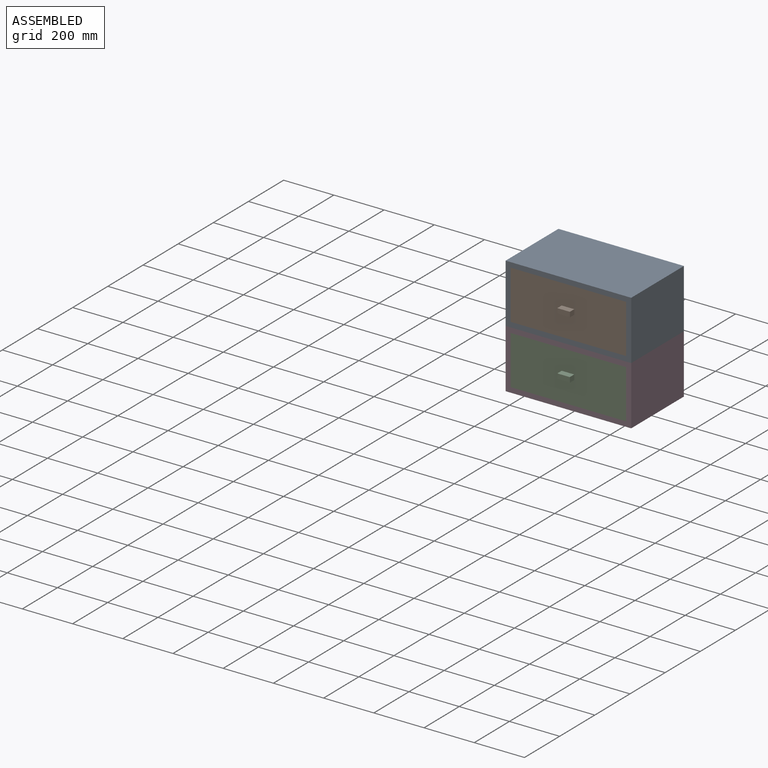
[diagram: assembled view]
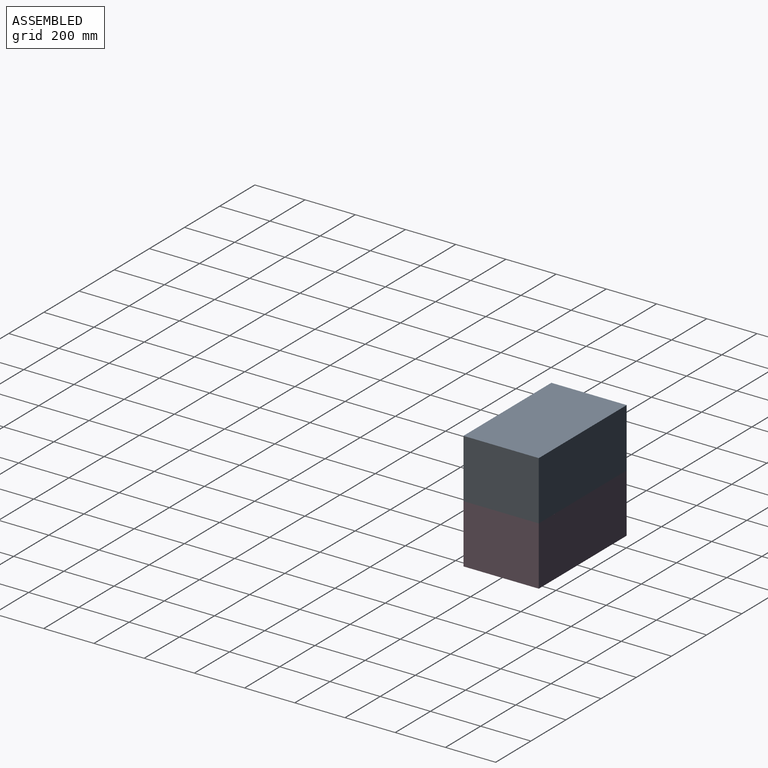
[diagram: assembled view, second angle]
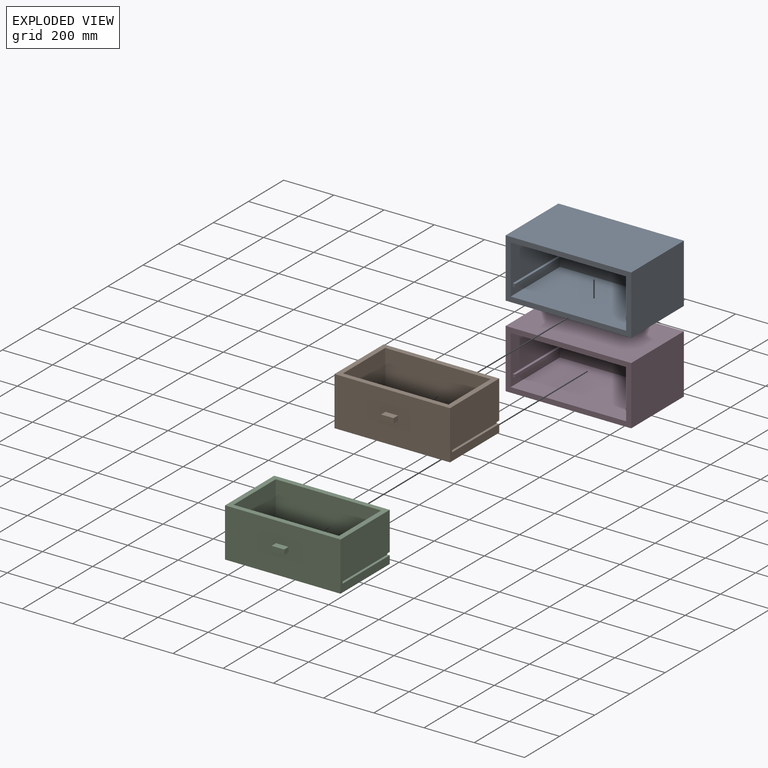
[diagram: exploded view]
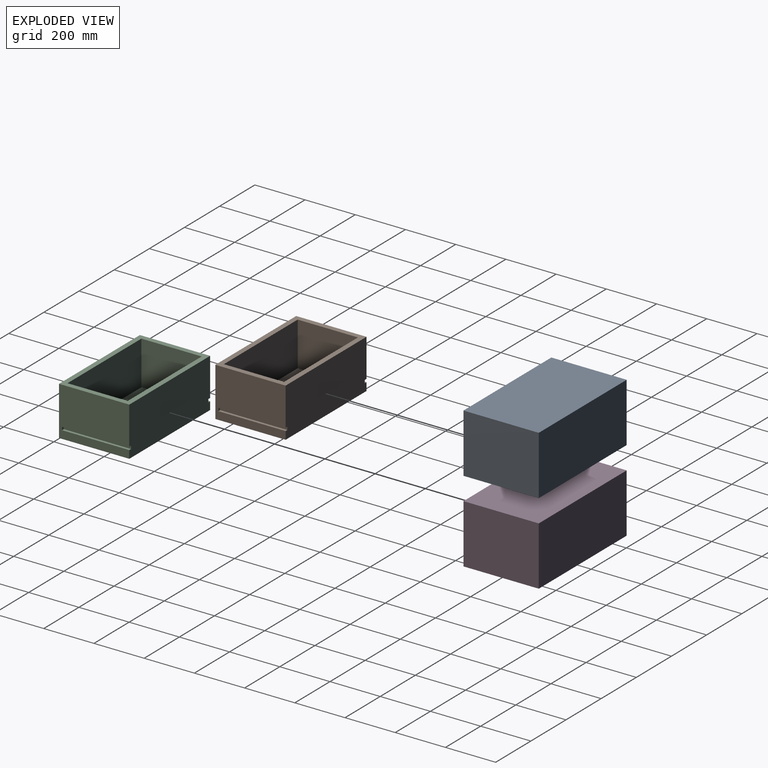
[diagram: exploded view, second angle]
ASSEMBLY  parts=4 mates=3
PART A: 19 faces, bbox 500x300x235 mm
  f0: plane 280x195mm, normal (1,0,0), area 51384mm2, adj f1,f8,f9,f10,f15,f17,f18
  f1: plane 500x235mm, normal (0,-1,0), area 27800mm2, adj f0,f2,f3,f5,f6,f7,f9,f10
  f2: plane 300x235mm, normal (-1,0,0), area 70500mm2, adj f1,f4,f5,f6
  f3: plane 300x235mm, normal (1,0,0), area 70500mm2, adj f1,f4,f5,f6
  f4: plane 500x235mm, normal (0,1,0), area 117500mm2, adj f2,f3,f5,f6
  f5: plane 500x300mm, normal (0,0,1), area 150000mm2, adj f1,f2,f3,f4
  f6: plane 500x300mm, normal (0,0,-1), area 150000mm2, adj f1,f2,f3,f4
  f7: plane 280x195mm, normal (-1,0,0), area 51384mm2, adj f1,f8,f9,f10,f11,f13,f14
  f8: plane 460x195mm, normal (0,-1,0), area 89460mm2, adj f0,f7,f9,f10,f11,f12,f13,f15
  f9: plane 460x280mm, normal (0,0,-1), area 128800mm2, adj f0,f1,f7,f8
  f10: plane 460x280mm, normal (0,0,1), area 128800mm2, adj f0,f1,f7,f8
  f11: plane 268x10mm, normal (0,0,1), area 2680mm2, adj f7,f8,f12,f14
  f12: plane 268x12mm, normal (-1,0,0), area 3216mm2, adj f8,f11,f13,f14
  f13: plane 268x10mm, normal (0,0,-1), area 2680mm2, adj f7,f8,f12,f14
  f14: plane 12x10mm, normal (0,-1,0), area 120mm2, adj f7,f11,f12,f13
  f15: plane 268x10mm, normal (0,0,1), area 2680mm2, adj f0,f8,f16,f18
  f16: plane 268x12mm, normal (1,0,0), area 3216mm2, adj f8,f15,f17,f18
  f17: plane 268x10mm, normal (0,0,-1), area 2680mm2, adj f0,f8,f16,f18
  f18: plane 12x10mm, normal (0,-1,0), area 120mm2, adj f0,f15,f16,f17
PART B: 48 faces, bbox 460x305x195 mm
  f0: plane 50x25mm, normal (0,0,1), area 1250mm2, adj f1,f3,f4,f5
  f1: plane 25x20mm, normal (-1,0,0), area 500mm2, adj f0,f2,f4,f5
  f2: plane 50x25mm, normal (0,0,-1), area 237.5mm2, adj f1,f3,f4,f5,f26,f27,f28
  f3: plane 25x20mm, normal (1,0,0), area 500mm2, adj f0,f2,f4,f5
  f4: plane 50x20mm, normal (0,-1,0), area 1000mm2, adj f0,f1,f2,f3
  f5: plane 460x195mm, normal (0,-1,0), area 88700mm2, adj f0,f1,f2,f3,f6,f7,f8,f10
  f6: plane 280x195mm, normal (-1,0,0), area 51384mm2, adj f5,f7,f8,f9,f20,f22,f23
  f7: plane 460x280mm, normal (0,0,1), area 28000mm2, adj f5,f6,f9,f10,f11,f13,f14,f15
  f8: plane 460x280mm, normal (0,0,-1), area 128800mm2, adj f5,f6,f9,f10
  f9: plane 460x195mm, normal (0,1,0), area 89460mm2, adj f6,f7,f8,f10,f17,f18,f19,f20
  f10: plane 280x195mm, normal (1,0,0), area 51384mm2, adj f5,f7,f8,f9,f16,f18,f19
  f11: plane 240x175mm, normal (1,0,0), area 42000mm2, adj f7,f12,f13,f15
  f12: plane 420x240mm, normal (0,0,1), area 100800mm2, adj f11,f13,f14,f15
  f13: plane 420x175mm, normal (0,-1,0), area 73500mm2, adj f7,f11,f12,f14
  f14: plane 240x175mm, normal (-1,0,0), area 42000mm2, adj f7,f12,f13,f15
  f15: plane 420x175mm, normal (0,1,0), area 73500mm2, adj f7,f11,f12,f14
  f16: plane 12x10mm, normal (0,1,0), area 120mm2, adj f10,f17,f18,f19
  f17: plane 268x12mm, normal (1,0,0), area 3216mm2, adj f9,f16,f18,f19
  f18: plane 268x10mm, normal (0,0,1), area 2680mm2, adj f9,f10,f16,f17
  f19: plane 268x10mm, normal (0,0,-1), area 2680mm2, adj f9,f10,f16,f17
  f20: plane 268x10mm, normal (0,0,-1), area 2680mm2, adj f6,f9,f21,f23
  f21: plane 268x12mm, normal (-1,0,0), area 3216mm2, adj f9,f20,f22,f23
  f22: plane 268x10mm, normal (0,0,1), area 2680mm2, adj f6,f9,f21,f23
  f23: plane 12x10mm, normal (0,1,0), area 120mm2, adj f6,f20,f21,f22
  f24: plane 45x2.5mm, normal (0,0,1), area 112.5mm2, adj f5,f26,f27,f29
  f25: plane 45x25mm, normal (0,0,-1), area 1125mm2, adj f26,f27,f28,f29
  f26: plane 25x17.5mm, normal (1,0,0), area 437.5mm2, adj f2,f24,f25,f28,f29
  f27: plane 25x17.5mm, normal (-1,0,0), area 437.5mm2, adj f2,f24,f25,f28,f29
  f28: plane 45x17.5mm, normal (0,1,0), area 787.5mm2, adj f2,f25,f26,f27
  f29: plane 455x190mm, normal (0,1,0), area 85662.5mm2, adj f24,f25,f26,f27,f30,f31,f32,f34
  f30: plane 275x190mm, normal (1,0,0), area 47694mm2, adj f29,f31,f32,f33,f44,f46,f47
  f31: plane 455x275mm, normal (0,0,-1), area 21000mm2, adj f29,f30,f33,f34,f35,f37,f38,f39
  f32: plane 455x275mm, normal (0,0,1), area 125125mm2, adj f29,f30,f33,f34
  f33: plane 455x190mm, normal (0,-1,0), area 86110mm2, adj f30,f31,f32,f34,f41,f42,f43,f44
  f34: plane 275x190mm, normal (-1,0,0), area 47694mm2, adj f29,f31,f32,f33,f40,f42,f43
  f35: plane 245x175mm, normal (-1,0,0), area 42875mm2, adj f31,f36,f37,f39
  f36: plane 425x245mm, normal (0,0,-1), area 104125mm2, adj f35,f37,f38,f39
  f37: plane 425x175mm, normal (0,1,0), area 74375mm2, adj f31,f35,f36,f38
  f38: plane 245x175mm, normal (1,0,0), area 42875mm2, adj f31,f36,f37,f39
  f39: plane 425x175mm, normal (0,-1,0), area 74375mm2, adj f31,f35,f36,f38
  f40: plane 17x10mm, normal (0,-1,0), area 170mm2, adj f34,f41,f42,f43
  f41: plane 268x17mm, normal (-1,0,0), area 4556mm2, adj f33,f40,f42,f43
  f42: plane 268x10mm, normal (0,0,-1), area 2680mm2, adj f33,f34,f40,f41
  f43: plane 268x10mm, normal (0,0,1), area 2680mm2, adj f33,f34,f40,f41
  f44: plane 268x10mm, normal (0,0,1), area 2680mm2, adj f30,f33,f45,f47
  f45: plane 268x17mm, normal (1,0,0), area 4556mm2, adj f33,f44,f46,f47
  f46: plane 268x10mm, normal (0,0,-1), area 2680mm2, adj f30,f33,f45,f47
  f47: plane 17x10mm, normal (0,-1,0), area 170mm2, adj f30,f44,f45,f46
PART C: same geometry as B
PART D: same geometry as A
PLACE A t=(-208.04,210.95,326.86)mm
PLACE B t=(-208.04,210.95,326.86)mm
PLACE C t=(-208.04,210.95,91.86)mm
PLACE D t=(-208.04,210.95,91.86)mm fixed
MATE slider D.f8 <-> C.f9  axis (0,-1,0) through (-428.04,340.95,155.23)mm
MATE slider A.f8 <-> B.f9  axis (0,-1,0) through (11.96,340.95,390.23)mm
MATE fastened D.f3 <-> A.f3  axis (1,0,0) through (41.96,360.95,326.86)mm
